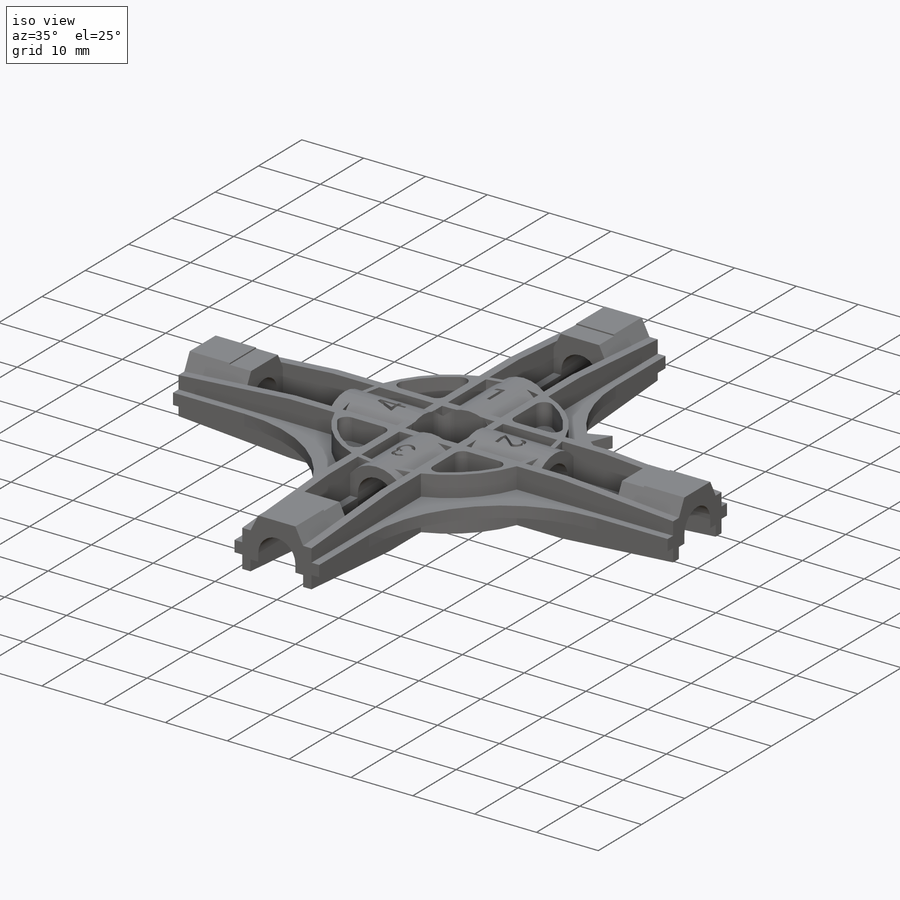
[diagram: iso view]
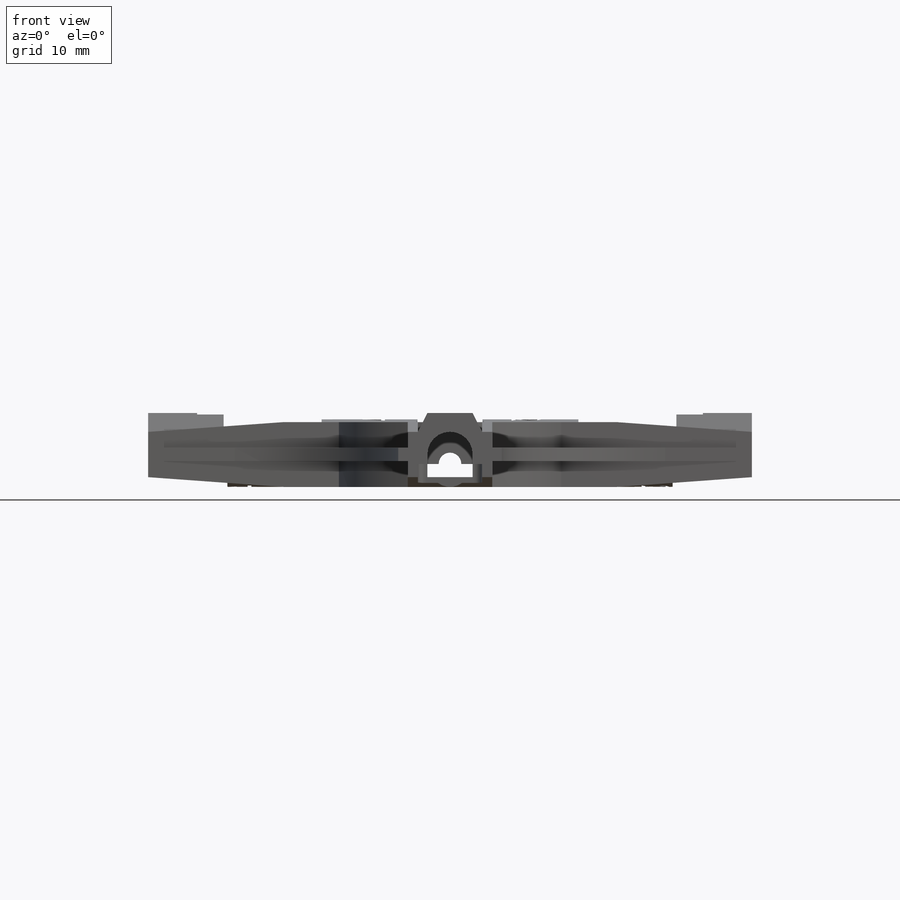
[diagram: front view]
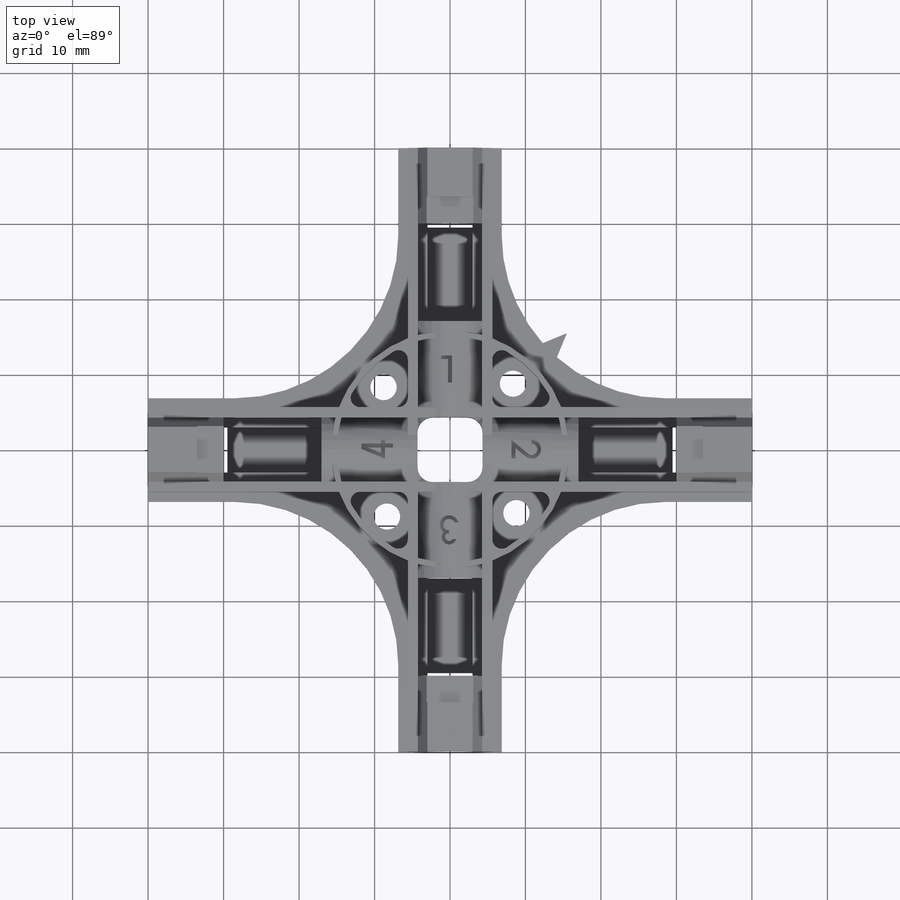
[diagram: top view]
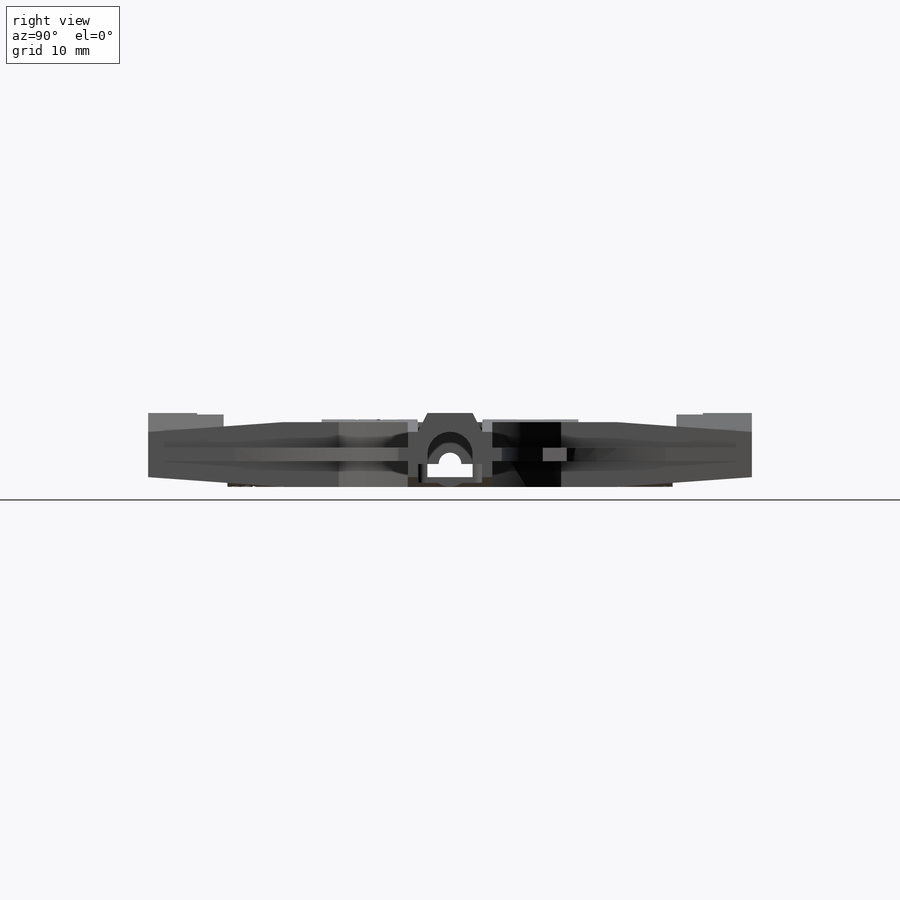
[diagram: right view]
SOLIDWORKS PART (.sldprt)
format: sldprt  version: not decoded by parser v0  size: 1,293,312 bytes
history: native  units: mm
features: sketch x22, cut_extrude x12, plane x7, extrude x7, pattern_circular x3, material x1 (+8 scaffold rows collapsed)
feature tree (60):
  scaffold x8  (default folders/planes/origin — collapsed)
  material  "PA Type 6"
  plane  "Plan de face"
  plane  "Plan de dessus"
  plane  "Plan de droite"
  sketch  "Esquisse3"  dims[D1=11.2mm D2=5.6mm D3=8.6mm D4=4.3mm]
  extrude  "Extrusion1"  Depth=22mm
  plane  "Plan2"  Offset=40mm
  sketch  "Esquisse4"  dims[D1=11.2mm D2=5.6mm D3=6.0mm D4=3.0mm]
  sketch  "Esquisse5"
  sketch  "Esquisse6"  dims[D1=8.5mm D2=4.25mm D3=5.0mm]
  cut_extrude  "Extrusion3"  [1 undecoded]
  sketch  "Esquisse7"  dims[c1.D1=9.6mm c1.D2=6.0mm c2.D1=10.7mm c2.D3=0.7mm]
  extrude  "Extrusion4"  Depth=17mm
  sketch  "Esquisse10"  dims[D1=3.0mm D2=8.5mm]
  extrude  "Extrusion6"  Depth=10mm
  sketch  "Esquisse11"  dims[D1=3.5mm]
  cut_extrude  "Extrusion7"  Depth=0.2mm
  plane  "Plan3"  Offset=1.25mm
  sketch  "Esquisse14"
  pattern_circular  "Répétition circulaire1"  Count=4 Angle=90deg
  sketch  "Esquisse19"  dims[D1=1.25mm D2=1.25mm D3=11.5mm D4=11.5mm]
  extrude  "Extrusion14"  Depth=1.8mm
  sketch  "Esquisse20"  dims[D1=31.5mm D2=30.0mm]
  extrude  "Extrusion15"  Depth=8.6mm
  sketch  "Esquisse12"  dims[c1.D5=1.0mm c1.D1=8.5mm c1.D2=4.25mm c1.D3=10.5mm c1.D4=17.0mm c2.D5=8.5mm c2.D6=8.5mm c2.D7=4.25mm]
  sketch  "Esquisse15"  dims[D5=2.0mm D1=8.6mm D2=4.3mm D3=8.6mm D4=4.3mm]
  cut_extrude  "Extrusion10"  Depth=10.2mm
  cut_extrude  "Extrusion18"  [1 undecoded]
  sketch  "Esquisse21"  dims[D1=3.0mm]
  cut_extrude  "Extrusion19"  [1 undecoded]
  sketch  "Esquisse22"  dims[c1.D1=15.0mm c1.D2=1.25mm c1.D3=1.25mm c2.D1=~0.715212mm]
  cut_extrude  "Extrusion20"  Depth=3.5mm
  sketch  "Esquisse23"  dims[c1.D1=15.0mm c1.D2=1.25mm c1.D3=1.25mm c2.D2=1.25mm c2.D1=~0.715212mm]
  cut_extrude  "Extrusion21"  Depth=3.5mm
  sketch  "Esquisse24"  dims[D1=3.5mm]
  cut_extrude  "Extrusion22"  [1 undecoded]
  sketch  "Esquisse25"
  extrude  "Extrusion23"  Depth=10mm
  pattern_circular  "Répétition circulaire4"  Count=4 Angle=360deg
  sketch  "Esquisse8"  dims[D2=3.0mm D1=3.0mm D3=0.7mm]
  cut_extrude  "Extrusion26"  Depth=29mm
  pattern_circular  "Répétition circulaire5"  Count=4 Angle=360deg
  sketch  "Esquisse27"  dims[c1.D1=~5.351863mm c2.D1=45.0deg c2.D2=~40.305087mm c3.D2=22.5deg c3.D3=~40.305087mm c4.D3=15.0deg]
  extrude  "Extrusion27"  Depth=1.8mm
  plane  "Plan4"  Offset=4mm
  sketch  "Esquisse28"  dims[c1.D11=1.25mm c1.D12=1.5mm c1.D18=1.0mm c1.D1=0.5mm c1.D2=0.25mm c1.D3=0.5mm c1.D4=0.5mm c1.D5=0.5mm c1.D6=3.0mm c1.D7=1.25mm c2.D6=2.5mm c2.D8=~1.082317mm c3.D8=50.0deg c3.D9=0.5mm c3.D10=0.5mm c3.D13=~0.798034mm c3.D12=10.0mm c4.D13=~3.11082mm c5.D13=~179.274686deg c6.D13=0.5mm c6.D14=0.5mm c6.D15=0.5mm c6.D16=3.0mm c6.D17=1.5mm c7.D16=1.25mm c7.D17=2.5mm c7.D19=0.5mm c7.D20=~0.637974mm]
  cut_extrude  "Extrusion28"  Depth=2mm
  plane  "Plan5"  Offset=8mm
  sketch  "Esquisse29"  dims[c1.D11=2.0mm c1.D12=1.5mm c1.D7=1.0mm c1.D9=1.0mm c1.D1=0.5mm c1.D2=0.25mm c1.D3=0.5mm c1.D4=0.5mm c1.D5=0.5mm c1.D6=3.0mm c2.D7=1.5mm c2.D6=3.0mm c2.D8=~1.082317mm c3.D8=50.0deg c3.D9=0.5mm c3.D10=0.5mm c3.D13=~0.798034mm c3.D12=9.0mm c4.D13=~3.11082mm c5.D13=~179.274686deg c6.D13=0.5mm c6.D14=0.5mm c6.D15=0.5mm c6.D16=3.0mm c6.D17=1.5mm c7.D16=1.5mm c7.D17=3.0mm c7.D2=0.5mm c7.D3=0.25mm c7.D4=0.5mm c7.D5=0.5mm c7.D6=2.5mm c7.D7=50.0deg c8.D4=0.5mm c8.D5=0.5mm c8.D8=1.25mm c8.D6=2.0mm c9.D8=0.5mm c9.D10=0.5mm c9.D11=0.5mm c9.D12=0.5mm c9.D13=2.0mm c9.D14=1.0mm]
  cut_extrude  "Extrusion29"  Depth=2mm
  sketch  "Esquisse30"
  cut_extrude  "Extrusion31"  Depth=0.2mm
decode coverage: 36 of 44 modeling features carry decoded parameters
note: ~ marks probable driven/reference dimensions
note: 4 parameter values undecoded
summary: no parameter record found for 4 features
note: suppression state not decoded; provenance and decode notes live in map.json
